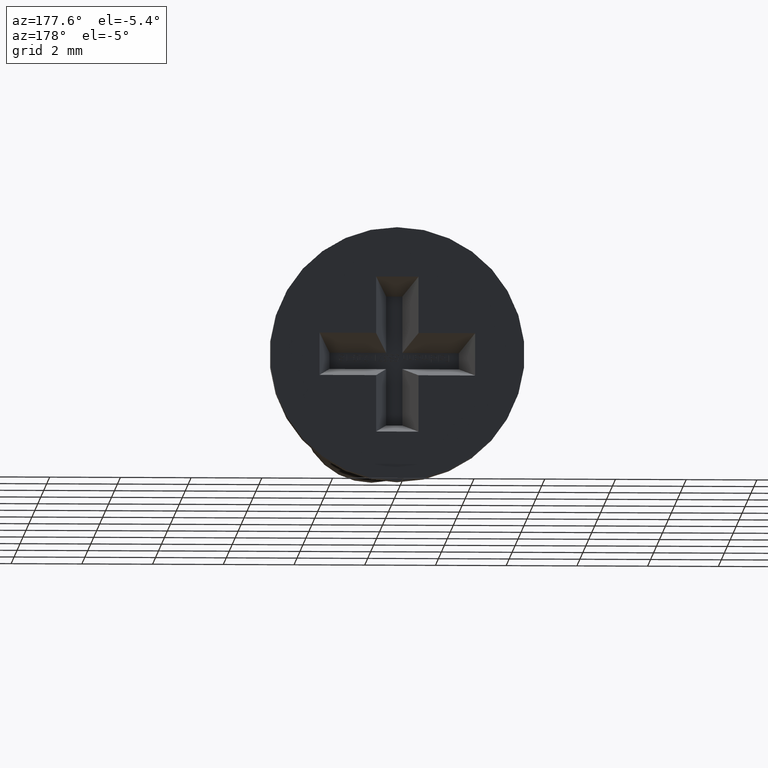
[diagram: clean part render]
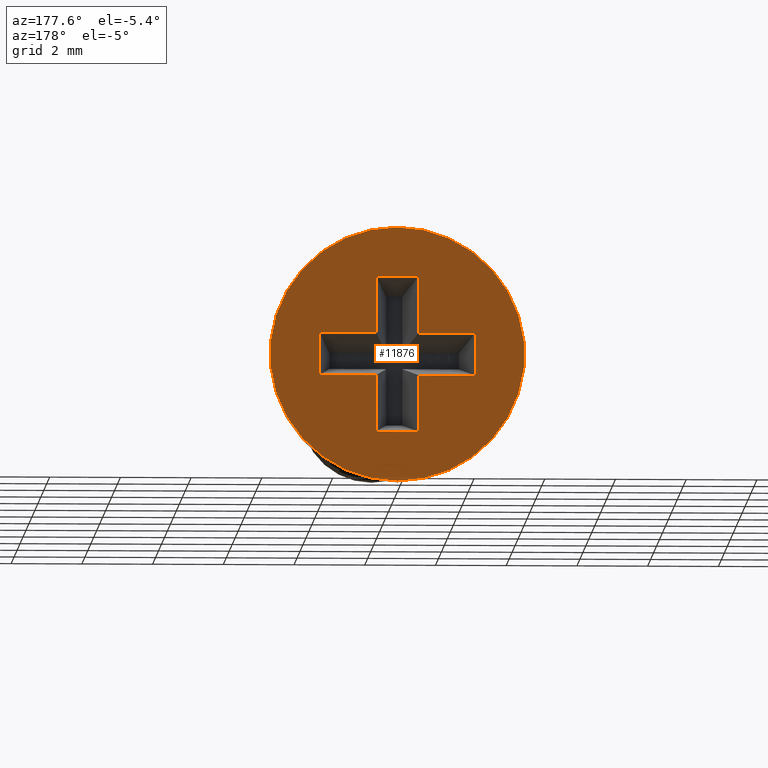
[diagram: same view with one face highlighted and labeled with its STEP entity id]
A machine part, auxiliary view. The second image highlights one B-rep face of the part: STEP entity #11876.
In plain terms, the highlighted planar face has unit normal (0, 1, 0).
Its self-contained STEP definition (entity closure, byte-faithful):
#83 = LINE ( 'NONE', #7920, #11658 ) ;
#102 = CARTESIAN_POINT ( 'NONE',  ( -2.199999999999999700, 18.00000000000000000, -0.5999999999999999800 ) ) ;
#535 = ORIENTED_EDGE ( 'NONE', *, *, #8143, .F. ) ;
#590 = EDGE_CURVE ( 'NONE', #12607, #3251, #6122, .T. ) ;
#600 = CARTESIAN_POINT ( 'NONE',  ( -0.5999999999999999800, 18.00000000000000000, -2.200000000000000200 ) ) ;
#852 = VECTOR ( 'NONE', #1998, 1000.000000000000000 ) ;
#982 = DIRECTION ( 'NONE',  ( 1.355252715606880300E-016, 0.0000000000000000000, 1.000000000000000000 ) ) ;
#1078 = VECTOR ( 'NONE', #982, 1000.000000000000000 ) ;
#1087 = EDGE_CURVE ( 'NONE', #6615, #8191, #5775, .T. ) ;
#1293 = VECTOR ( 'NONE', #7469, 1000.000000000000000 ) ;
#1398 = CARTESIAN_POINT ( 'NONE',  ( -2.199999999999999700, 18.00000000000000000, -0.5999999999999999800 ) ) ;
#1422 = DIRECTION ( 'NONE',  ( -0.0000000000000000000, -0.0000000000000000000, -1.000000000000000000 ) ) ;
#1640 = CARTESIAN_POINT ( 'NONE',  ( -0.5999999999999999800, 18.00000000000000000, -2.200000000000000200 ) ) ;
#1973 = LINE ( 'NONE', #4056, #1293 ) ;
#1998 = DIRECTION ( 'NONE',  ( 1.000000000000000000, 0.0000000000000000000, 0.0000000000000000000 ) ) ;
#2277 = DIRECTION ( 'NONE',  ( -2.032879073410320300E-016, -0.0000000000000000000, -1.000000000000000000 ) ) ;
#2639 = CARTESIAN_POINT ( 'NONE',  ( 2.200000000000000600, 18.00000000000000000, 0.5999999999999999800 ) ) ;
#2823 = EDGE_CURVE ( 'NONE', #3352, #10751, #7876, .T. ) ;
#3075 = CARTESIAN_POINT ( 'NONE',  ( 0.0000000000000000000, 18.00000000000000000, 0.0000000000000000000 ) ) ;
#3084 = ORIENTED_EDGE ( 'NONE', *, *, #590, .F. ) ;
#3223 = PLANE ( 'NONE',  #8285 ) ;
#3251 = VERTEX_POINT ( 'NONE', #7721 ) ;
#3352 = VERTEX_POINT ( 'NONE', #13757 ) ;
#3419 = CARTESIAN_POINT ( 'NONE',  ( -0.5999999999999999800, 18.00000000000000000, -2.200000000000000200 ) ) ;
#3430 = VERTEX_POINT ( 'NONE', #5692 ) ;
#3708 = VERTEX_POINT ( 'NONE', #3419 ) ;
#3712 = CARTESIAN_POINT ( 'NONE',  ( -0.5999999999999996400, 18.00000000000000000, -0.5999999999999999800 ) ) ;
#3818 = ORIENTED_EDGE ( 'NONE', *, *, #6562, .F. ) ;
#3985 = CIRCLE ( 'NONE', #10380, 3.600000000000000100 ) ;
#4056 = CARTESIAN_POINT ( 'NONE',  ( -2.199999999999999700, 18.00000000000000000, 0.5999999999999999800 ) ) ;
#4078 = CARTESIAN_POINT ( 'NONE',  ( -0.5999999999999994200, 18.00000000000000000, 2.200000000000000200 ) ) ;
#4269 = DIRECTION ( 'NONE',  ( 0.0000000000000000000, 0.0000000000000000000, -1.000000000000000000 ) ) ;
#5593 = DIRECTION ( 'NONE',  ( 0.0000000000000000000, 0.0000000000000000000, 1.000000000000000000 ) ) ;
#5692 = CARTESIAN_POINT ( 'NONE',  ( 0.0000000000000000000, 18.00000000000000000, -3.600000000000000100 ) ) ;
#5718 = LINE ( 'NONE', #10370, #12797 ) ;
#5775 = LINE ( 'NONE', #102, #13756 ) ;
#5796 = EDGE_CURVE ( 'NONE', #10751, #12870, #10086, .T. ) ;
#5923 = VECTOR ( 'NONE', #10103, 1000.000000000000000 ) ;
#6122 = LINE ( 'NONE', #9537, #6314 ) ;
#6155 = ORIENTED_EDGE ( 'NONE', *, *, #14086, .F. ) ;
#6234 = CARTESIAN_POINT ( 'NONE',  ( 0.6000000000000005300, 18.00000000000000000, 0.5999999999999999800 ) ) ;
#6314 = VECTOR ( 'NONE', #12852, 1000.000000000000000 ) ;
#6375 = EDGE_CURVE ( 'NONE', #8191, #11652, #1973, .T. ) ;
#6562 = EDGE_CURVE ( 'NONE', #3251, #12368, #83, .T. ) ;
#6615 = VERTEX_POINT ( 'NONE', #1398 ) ;
#7136 = LINE ( 'NONE', #600, #14211 ) ;
#7332 = DIRECTION ( 'NONE',  ( -0.0000000000000000000, -0.0000000000000000000, -1.000000000000000000 ) ) ;
#7469 = DIRECTION ( 'NONE',  ( 1.000000000000000000, 0.0000000000000000000, 0.0000000000000000000 ) ) ;
#7509 = DIRECTION ( 'NONE',  ( -1.000000000000000000, -0.0000000000000000000, -0.0000000000000000000 ) ) ;
#7545 = VECTOR ( 'NONE', #10597, 1000.000000000000000 ) ;
#7683 = ORIENTED_EDGE ( 'NONE', *, *, #11507, .F. ) ;
#7721 = CARTESIAN_POINT ( 'NONE',  ( 0.6000000000000003100, 18.00000000000000000, -0.5999999999999999800 ) ) ;
#7876 = LINE ( 'NONE', #4078, #852 ) ;
#7920 = CARTESIAN_POINT ( 'NONE',  ( 0.5999999999999999800, 18.00000000000000000, -2.200000000000000200 ) ) ;
#7951 = VERTEX_POINT ( 'NONE', #3712 ) ;
#8089 = VECTOR ( 'NONE', #7509, 1000.000000000000000 ) ;
#8143 = EDGE_CURVE ( 'NONE', #7951, #6615, #11799, .T. ) ;
#8191 = VERTEX_POINT ( 'NONE', #13093 ) ;
#8224 = LINE ( 'NONE', #11241, #5923 ) ;
#8285 = AXIS2_PLACEMENT_3D ( 'NONE', #3075, #12254, #8898 ) ;
#8300 = CARTESIAN_POINT ( 'NONE',  ( 2.200000000000000600, 18.00000000000000000, -0.5999999999999999800 ) ) ;
#8526 = VERTEX_POINT ( 'NONE', #2639 ) ;
#8587 = DIRECTION ( 'NONE',  ( 2.032879073410320300E-016, 0.0000000000000000000, 1.000000000000000000 ) ) ;
#8852 = EDGE_LOOP ( 'NONE', ( #7683 ) ) ;
#8898 = DIRECTION ( 'NONE',  ( 0.0000000000000000000, -0.0000000000000000000, 1.000000000000000000 ) ) ;
#8909 = CARTESIAN_POINT ( 'NONE',  ( 0.6000000000000005300, 18.00000000000000000, 0.5999999999999999800 ) ) ;
#8982 = LINE ( 'NONE', #1640, #7545 ) ;
#9076 = ORIENTED_EDGE ( 'NONE', *, *, #11559, .F. ) ;
#9390 = CARTESIAN_POINT ( 'NONE',  ( -2.199999999999999700, 18.00000000000000000, -0.5999999999999999800 ) ) ;
#9537 = CARTESIAN_POINT ( 'NONE',  ( 0.6000000000000003100, 18.00000000000000000, -0.5999999999999999800 ) ) ;
#9718 = VECTOR ( 'NONE', #7332, 1000.000000000000000 ) ;
#10054 = CARTESIAN_POINT ( 'NONE',  ( -0.5999999999999996400, 18.00000000000000000, 0.5999999999999999800 ) ) ;
#10086 = LINE ( 'NONE', #6234, #9718 ) ;
#10103 = DIRECTION ( 'NONE',  ( 1.000000000000000000, 0.0000000000000000000, 0.0000000000000000000 ) ) ;
#10125 = EDGE_CURVE ( 'NONE', #11652, #3352, #14268, .T. ) ;
#10334 = EDGE_CURVE ( 'NONE', #12368, #3708, #8982, .T. ) ;
#10370 = CARTESIAN_POINT ( 'NONE',  ( 2.200000000000000600, 18.00000000000000000, -0.5999999999999999800 ) ) ;
#10380 = AXIS2_PLACEMENT_3D ( 'NONE', #11047, #11150, #4269 ) ;
#10597 = DIRECTION ( 'NONE',  ( -1.000000000000000000, -0.0000000000000000000, -0.0000000000000000000 ) ) ;
#10751 = VERTEX_POINT ( 'NONE', #11955 ) ;
#10892 = FACE_BOUND ( 'NONE', #13771, .T. ) ;
#11047 = CARTESIAN_POINT ( 'NONE',  ( 0.0000000000000000000, 18.00000000000000000, 0.0000000000000000000 ) ) ;
#11150 = DIRECTION ( 'NONE',  ( -0.0000000000000000000, -1.000000000000000000, -0.0000000000000000000 ) ) ;
#11241 = CARTESIAN_POINT ( 'NONE',  ( 0.6000000000000005300, 18.00000000000000000, 0.5999999999999999800 ) ) ;
#11456 = ORIENTED_EDGE ( 'NONE', *, *, #6375, .F. ) ;
#11507 = EDGE_CURVE ( 'NONE', #3430, #3430, #3985, .T. ) ;
#11559 = EDGE_CURVE ( 'NONE', #12870, #8526, #8224, .T. ) ;
#11652 = VERTEX_POINT ( 'NONE', #10054 ) ;
#11658 = VECTOR ( 'NONE', #2277, 1000.000000000000000 ) ;
#11799 = LINE ( 'NONE', #9390, #8089 ) ;
#11876 = ADVANCED_FACE ( 'NONE', ( #10892, #13893 ), #3223, .T. ) ;
#11955 = CARTESIAN_POINT ( 'NONE',  ( 0.6000000000000005300, 18.00000000000000000, 2.200000000000000200 ) ) ;
#12093 = CARTESIAN_POINT ( 'NONE',  ( -0.5999999999999996400, 18.00000000000000000, 0.5999999999999999800 ) ) ;
#12254 = DIRECTION ( 'NONE',  ( 0.0000000000000000000, 1.000000000000000000, 0.0000000000000000000 ) ) ;
#12368 = VERTEX_POINT ( 'NONE', #14343 ) ;
#12583 = ORIENTED_EDGE ( 'NONE', *, *, #5796, .F. ) ;
#12607 = VERTEX_POINT ( 'NONE', #8300 ) ;
#12709 = ORIENTED_EDGE ( 'NONE', *, *, #10334, .F. ) ;
#12797 = VECTOR ( 'NONE', #1422, 1000.000000000000000 ) ;
#12852 = DIRECTION ( 'NONE',  ( -1.000000000000000000, -0.0000000000000000000, -0.0000000000000000000 ) ) ;
#12870 = VERTEX_POINT ( 'NONE', #8909 ) ;
#13093 = CARTESIAN_POINT ( 'NONE',  ( -2.199999999999999700, 18.00000000000000000, 0.5999999999999999800 ) ) ;
#13341 = ORIENTED_EDGE ( 'NONE', *, *, #2823, .F. ) ;
#13754 = ORIENTED_EDGE ( 'NONE', *, *, #10125, .F. ) ;
#13756 = VECTOR ( 'NONE', #5593, 1000.000000000000000 ) ;
#13757 = CARTESIAN_POINT ( 'NONE',  ( -0.5999999999999994200, 18.00000000000000000, 2.200000000000000200 ) ) ;
#13771 = EDGE_LOOP ( 'NONE', ( #12709, #3818, #3084, #6155, #9076, #12583, #13341, #13754, #11456, #14503, #535, #14361 ) ) ;
#13893 = FACE_OUTER_BOUND ( 'NONE', #8852, .T. ) ;
#13942 = EDGE_CURVE ( 'NONE', #3708, #7951, #7136, .T. ) ;
#14086 = EDGE_CURVE ( 'NONE', #8526, #12607, #5718, .T. ) ;
#14211 = VECTOR ( 'NONE', #8587, 1000.000000000000000 ) ;
#14268 = LINE ( 'NONE', #12093, #1078 ) ;
#14343 = CARTESIAN_POINT ( 'NONE',  ( 0.5999999999999999800, 18.00000000000000000, -2.200000000000000200 ) ) ;
#14361 = ORIENTED_EDGE ( 'NONE', *, *, #13942, .F. ) ;
#14503 = ORIENTED_EDGE ( 'NONE', *, *, #1087, .F. ) ;